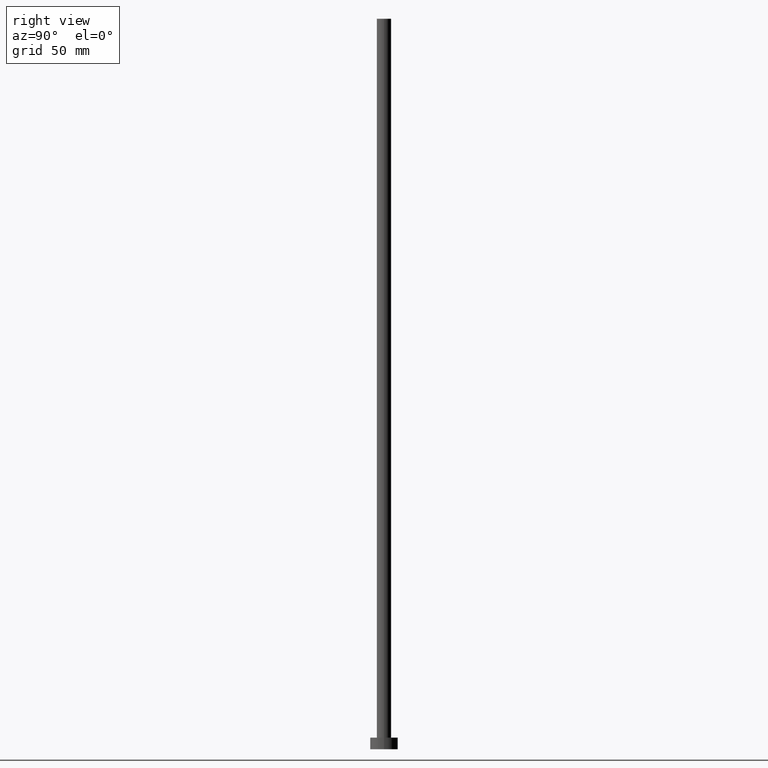
[diagram: clean part render]
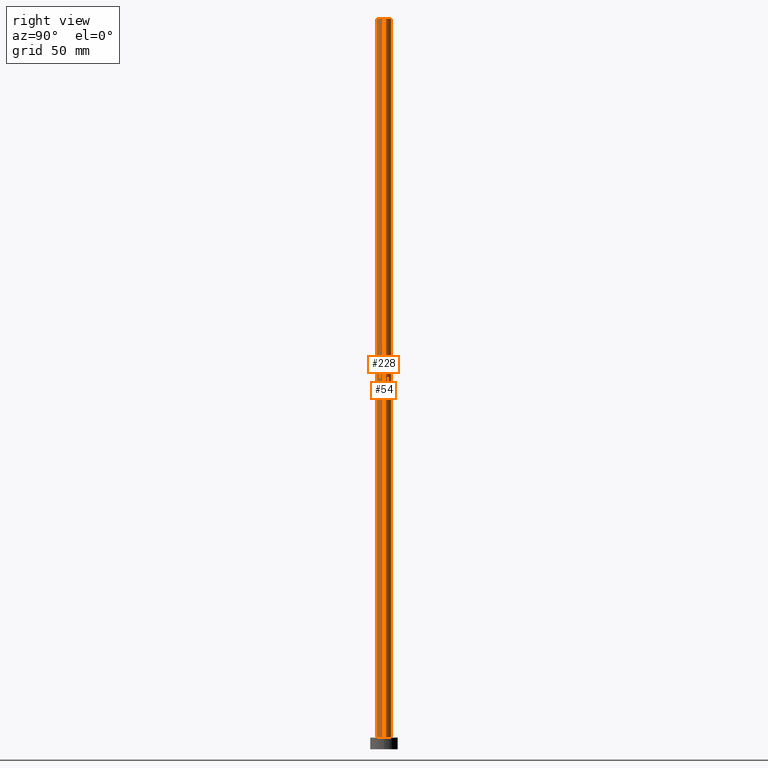
[diagram: same view with one multi-face feature highlighted, each face labeled with its STEP entity id]
A machine part, right view. The highlighted faces form ONE feature: a constant-radius fillet chain: 2 tangent blend faces with common blend radius 3.1 mm. The faces share edges in the B-rep.
Their STEP definitions:
[1] entity #228 (Cylinder):
#1 = CIRCLE ( 'NONE', #21, 3.100000000000000089 ) ;
#11 = AXIS2_PLACEMENT_3D ( 'NONE', #163, #243, #97 ) ;
#15 = ORIENTED_EDGE ( 'NONE', *, *, #215, .T. ) ;
#18 = EDGE_CURVE ( 'NONE', #134, #55, #255, .T. ) ;
#21 = AXIS2_PLACEMENT_3D ( 'NONE', #22, #128, #60 ) ;
#22 = CARTESIAN_POINT ( 'NONE',  ( 0.000000000000000000, 0.000000000000000000, 315.0000000000000000 ) ) ;
#30 = AXIS2_PLACEMENT_3D ( 'NONE', #42, #254, #126 ) ;
#42 = CARTESIAN_POINT ( 'NONE',  ( 0.000000000000000000, 0.000000000000000000, 5.000000000000000000 ) ) ;
#46 = CYLINDRICAL_SURFACE ( 'NONE', #11, 3.100000000000000089 ) ;
#47 = CARTESIAN_POINT ( 'NONE',  ( 3.100000000000000089, 3.796405077356794918E-16, 315.0000000000000000 ) ) ;
#55 = VERTEX_POINT ( 'NONE', #83 ) ;
#59 = ORIENTED_EDGE ( 'NONE', *, *, #18, .T. ) ;
#60 = DIRECTION ( 'NONE',  ( 1.000000000000000000, 0.000000000000000000, 0.000000000000000000 ) ) ;
#66 = EDGE_CURVE ( 'NONE', #138, #127, #225, .T. ) ;
#68 = CARTESIAN_POINT ( 'NONE',  ( 3.100000000000000089, 3.796405077356794918E-16, 315.0000000000000000 ) ) ;
#83 = CARTESIAN_POINT ( 'NONE',  ( -3.100000000000000089, 0.000000000000000000, 5.000000000000000000 ) ) ;
#84 = CIRCLE ( 'NONE', #30, 3.100000000000000089 ) ;
#88 = FACE_OUTER_BOUND ( 'NONE', #89, .T. ) ;
#89 = EDGE_LOOP ( 'NONE', ( #183, #135, #59, #15 ) ) ;
#92 = CARTESIAN_POINT ( 'NONE',  ( 3.100000000000000089, 3.796405077356794918E-16, 5.000000000000000000 ) ) ;
#97 = DIRECTION ( 'NONE',  ( -1.000000000000000000, 0.000000000000000000, 0.000000000000000000 ) ) ;
#126 = DIRECTION ( 'NONE',  ( 1.000000000000000000, 0.000000000000000000, 0.000000000000000000 ) ) ;
#127 = VERTEX_POINT ( 'NONE', #92 ) ;
#128 = DIRECTION ( 'NONE',  ( 0.000000000000000000, 0.000000000000000000, 1.000000000000000000 ) ) ;
#133 = VECTOR ( 'NONE', #161, 1000.000000000000000 ) ;
#134 = VERTEX_POINT ( 'NONE', #142 ) ;
#135 = ORIENTED_EDGE ( 'NONE', *, *, #140, .F. ) ;
#138 = VERTEX_POINT ( 'NONE', #68 ) ;
#140 = EDGE_CURVE ( 'NONE', #134, #138, #1, .T. ) ;
#142 = CARTESIAN_POINT ( 'NONE',  ( -3.100000000000000089, 0.000000000000000000, 315.0000000000000000 ) ) ;
#145 = CARTESIAN_POINT ( 'NONE',  ( -3.100000000000000089, 0.000000000000000000, 315.0000000000000000 ) ) ;
#161 = DIRECTION ( 'NONE',  ( -0.000000000000000000, -0.000000000000000000, -1.000000000000000000 ) ) ;
#163 = CARTESIAN_POINT ( 'NONE',  ( 0.000000000000000000, 0.000000000000000000, 315.0000000000000000 ) ) ;
#183 = ORIENTED_EDGE ( 'NONE', *, *, #66, .F. ) ;
#198 = DIRECTION ( 'NONE',  ( -0.000000000000000000, -0.000000000000000000, -1.000000000000000000 ) ) ;
#211 = VECTOR ( 'NONE', #198, 1000.000000000000000 ) ;
#215 = EDGE_CURVE ( 'NONE', #55, #127, #84, .T. ) ;
#225 = LINE ( 'NONE', #47, #211 ) ;
#228 = ADVANCED_FACE ( 'NONE', ( #88 ), #46, .T. ) ;
#243 = DIRECTION ( 'NONE',  ( -0.000000000000000000, -0.000000000000000000, -1.000000000000000000 ) ) ;
#254 = DIRECTION ( 'NONE',  ( 0.000000000000000000, 0.000000000000000000, 1.000000000000000000 ) ) ;
#255 = LINE ( 'NONE', #145, #133 ) ;
[2] entity #54 (Cylinder):
#3 = FACE_OUTER_BOUND ( 'NONE', #217, .T. ) ;
#7 = DIRECTION ( 'NONE',  ( -0.000000000000000000, -0.000000000000000000, -1.000000000000000000 ) ) ;
#18 = EDGE_CURVE ( 'NONE', #134, #55, #255, .T. ) ;
#27 = CIRCLE ( 'NONE', #169, 3.100000000000000089 ) ;
#47 = CARTESIAN_POINT ( 'NONE',  ( 3.100000000000000089, 3.796405077356794918E-16, 315.0000000000000000 ) ) ;
#54 = ADVANCED_FACE ( 'NONE', ( #3 ), #129, .T. ) ;
#55 = VERTEX_POINT ( 'NONE', #83 ) ;
#63 = CARTESIAN_POINT ( 'NONE',  ( 0.000000000000000000, 0.000000000000000000, 315.0000000000000000 ) ) ;
#66 = EDGE_CURVE ( 'NONE', #138, #127, #225, .T. ) ;
#68 = CARTESIAN_POINT ( 'NONE',  ( 3.100000000000000089, 3.796405077356794918E-16, 315.0000000000000000 ) ) ;
#71 = AXIS2_PLACEMENT_3D ( 'NONE', #63, #143, #184 ) ;
#83 = CARTESIAN_POINT ( 'NONE',  ( -3.100000000000000089, 0.000000000000000000, 5.000000000000000000 ) ) ;
#92 = CARTESIAN_POINT ( 'NONE',  ( 3.100000000000000089, 3.796405077356794918E-16, 5.000000000000000000 ) ) ;
#100 = DIRECTION ( 'NONE',  ( 1.000000000000000000, 0.000000000000000000, 0.000000000000000000 ) ) ;
#102 = ORIENTED_EDGE ( 'NONE', *, *, #66, .T. ) ;
#110 = EDGE_CURVE ( 'NONE', #127, #55, #27, .T. ) ;
#122 = DIRECTION ( 'NONE',  ( -1.000000000000000000, 0.000000000000000000, 0.000000000000000000 ) ) ;
#127 = VERTEX_POINT ( 'NONE', #92 ) ;
#129 = CYLINDRICAL_SURFACE ( 'NONE', #187, 3.100000000000000089 ) ;
#133 = VECTOR ( 'NONE', #161, 1000.000000000000000 ) ;
#134 = VERTEX_POINT ( 'NONE', #142 ) ;
#138 = VERTEX_POINT ( 'NONE', #68 ) ;
#142 = CARTESIAN_POINT ( 'NONE',  ( -3.100000000000000089, 0.000000000000000000, 315.0000000000000000 ) ) ;
#143 = DIRECTION ( 'NONE',  ( 0.000000000000000000, 0.000000000000000000, 1.000000000000000000 ) ) ;
#145 = CARTESIAN_POINT ( 'NONE',  ( -3.100000000000000089, 0.000000000000000000, 315.0000000000000000 ) ) ;
#155 = ORIENTED_EDGE ( 'NONE', *, *, #110, .T. ) ;
#156 = ORIENTED_EDGE ( 'NONE', *, *, #247, .F. ) ;
#161 = DIRECTION ( 'NONE',  ( -0.000000000000000000, -0.000000000000000000, -1.000000000000000000 ) ) ;
#169 = AXIS2_PLACEMENT_3D ( 'NONE', #178, #180, #100 ) ;
#178 = CARTESIAN_POINT ( 'NONE',  ( 0.000000000000000000, 0.000000000000000000, 5.000000000000000000 ) ) ;
#180 = DIRECTION ( 'NONE',  ( 0.000000000000000000, 0.000000000000000000, 1.000000000000000000 ) ) ;
#184 = DIRECTION ( 'NONE',  ( 1.000000000000000000, 0.000000000000000000, 0.000000000000000000 ) ) ;
#187 = AXIS2_PLACEMENT_3D ( 'NONE', #204, #7, #122 ) ;
#191 = ORIENTED_EDGE ( 'NONE', *, *, #18, .F. ) ;
#198 = DIRECTION ( 'NONE',  ( -0.000000000000000000, -0.000000000000000000, -1.000000000000000000 ) ) ;
#204 = CARTESIAN_POINT ( 'NONE',  ( 0.000000000000000000, 0.000000000000000000, 315.0000000000000000 ) ) ;
#211 = VECTOR ( 'NONE', #198, 1000.000000000000000 ) ;
#217 = EDGE_LOOP ( 'NONE', ( #156, #102, #155, #191 ) ) ;
#220 = CIRCLE ( 'NONE', #71, 3.100000000000000089 ) ;
#225 = LINE ( 'NONE', #47, #211 ) ;
#247 = EDGE_CURVE ( 'NONE', #138, #134, #220, .T. ) ;
#255 = LINE ( 'NONE', #145, #133 ) ;